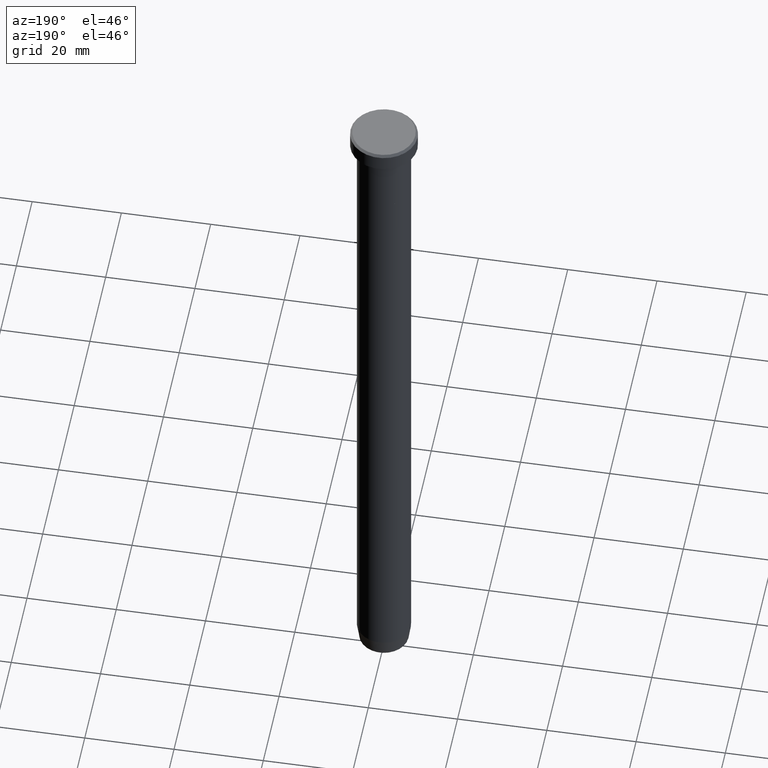
[diagram: clean part render]
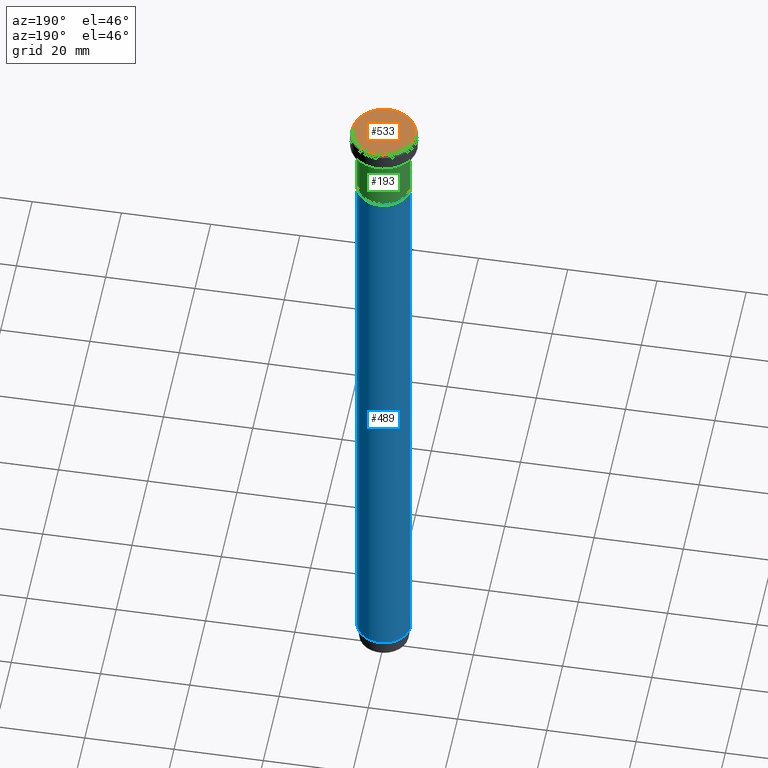
[diagram: same view with three faces highlighted in distinct colors, each labeled with its STEP entity id]
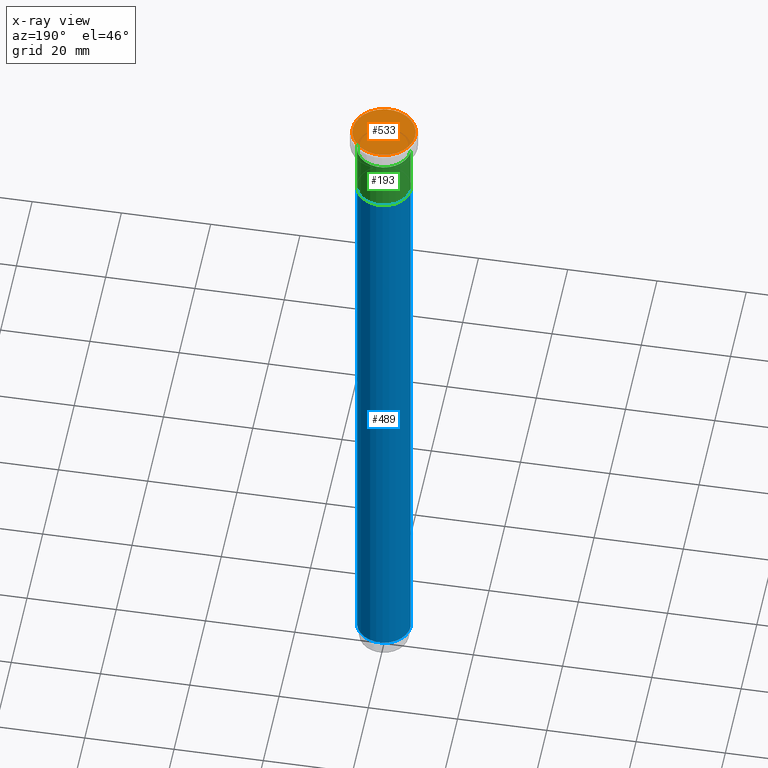
[diagram: x-ray of the same camera — body ghosted, the three highlighted faces saturated]
A machine part, auxiliary view with three faces highlighted in distinct colors.
The next image is the same camera in x-ray (body ghosted, the three faces saturated) — at least one of them is partly hidden behind the body in this view.
Their STEP definitions:

[orange] entity #533 — the highlighted planar face has unit normal (0, -0, 1).
#26 = CIRCLE ( 'NONE', #42, 7.000000000000001776 ) ;
#42 = AXIS2_PLACEMENT_3D ( 'NONE', #46, #379, #423 ) ;
#46 = CARTESIAN_POINT ( 'NONE',  ( 0.000000000000000000, 0.000000000000000000, 0.000000000000000000 ) ) ;
#95 = CARTESIAN_POINT ( 'NONE',  ( 7.000000000000001776, 8.878689293818310074E-16, 0.000000000000000000 ) ) ;
#99 = PLANE ( 'NONE',  #532 ) ;
#138 = DIRECTION ( 'NONE',  ( 1.000000000000000000, 0.000000000000000000, 0.000000000000000000 ) ) ;
#142 = CARTESIAN_POINT ( 'NONE',  ( 0.000000000000000000, 0.000000000000000000, 0.000000000000000000 ) ) ;
#149 = DIRECTION ( 'NONE',  ( 0.000000000000000000, -0.000000000000000000, 1.000000000000000000 ) ) ;
#158 = ORIENTED_EDGE ( 'NONE', *, *, #336, .T. ) ;
#185 = CARTESIAN_POINT ( 'NONE',  ( 0.000000000000000000, 0.000000000000000000, 0.000000000000000000 ) ) ;
#259 = CIRCLE ( 'NONE', #461, 7.000000000000001776 ) ;
#260 = VERTEX_POINT ( 'NONE', #352 ) ;
#265 = EDGE_LOOP ( 'NONE', ( #158, #273 ) ) ;
#273 = ORIENTED_EDGE ( 'NONE', *, *, #456, .T. ) ;
#330 = DIRECTION ( 'NONE',  ( 1.000000000000000000, 0.000000000000000000, 0.000000000000000000 ) ) ;
#336 = EDGE_CURVE ( 'NONE', #260, #498, #26, .T. ) ;
#352 = CARTESIAN_POINT ( 'NONE',  ( -7.000000000000001776, 0.000000000000000000, 0.000000000000000000 ) ) ;
#379 = DIRECTION ( 'NONE',  ( -0.000000000000000000, -0.000000000000000000, 1.000000000000000000 ) ) ;
#423 = DIRECTION ( 'NONE',  ( 1.000000000000000000, 0.000000000000000000, 0.000000000000000000 ) ) ;
#453 = DIRECTION ( 'NONE',  ( -0.000000000000000000, -0.000000000000000000, 1.000000000000000000 ) ) ;
#456 = EDGE_CURVE ( 'NONE', #498, #260, #259, .T. ) ;
#461 = AXIS2_PLACEMENT_3D ( 'NONE', #142, #453, #138 ) ;
#498 = VERTEX_POINT ( 'NONE', #95 ) ;
#501 = FACE_OUTER_BOUND ( 'NONE', #265, .T. ) ;
#532 = AXIS2_PLACEMENT_3D ( 'NONE', #185, #149, #330 ) ;
#533 = ADVANCED_FACE ( 'NONE', ( #501 ), #99, .T. ) ;

[blue] entity #489 — the highlighted cylindrical surface (edge-blend (fillet) strip) has radius 6 mm, axis along (-0, -0, 1).
#37 = CARTESIAN_POINT ( 'NONE',  ( -6.000000000000000000, 7.347880794884119736E-16, 0.000000000000000000 ) ) ;
#45 = CARTESIAN_POINT ( 'NONE',  ( 6.000000000000000000, 0.000000000000000000, 0.000000000000000000 ) ) ;
#47 = DIRECTION ( 'NONE',  ( -0.000000000000000000, -0.000000000000000000, 1.000000000000000000 ) ) ;
#62 = AXIS2_PLACEMENT_3D ( 'NONE', #374, #508, #414 ) ;
#91 = FACE_OUTER_BOUND ( 'NONE', #201, .T. ) ;
#97 = CARTESIAN_POINT ( 'NONE',  ( -6.000000000000000000, 7.347880794884119736E-16, -17.00000000000000000 ) ) ;
#105 = EDGE_CURVE ( 'NONE', #214, #393, #538, .T. ) ;
#112 = ORIENTED_EDGE ( 'NONE', *, *, #521, .F. ) ;
#121 = ORIENTED_EDGE ( 'NONE', *, *, #355, .T. ) ;
#130 = LINE ( 'NONE', #45, #180 ) ;
#161 = VERTEX_POINT ( 'NONE', #591 ) ;
#174 = CARTESIAN_POINT ( 'NONE',  ( 6.000000000000000000, 0.000000000000000000, -17.00000000000000000 ) ) ;
#180 = VECTOR ( 'NONE', #182, 1000.000000000000000 ) ;
#182 = DIRECTION ( 'NONE',  ( -0.000000000000000000, -0.000000000000000000, 1.000000000000000000 ) ) ;
#201 = EDGE_LOOP ( 'NONE', ( #121, #331, #493, #112 ) ) ;
#214 = VERTEX_POINT ( 'NONE', #174 ) ;
#225 = CARTESIAN_POINT ( 'NONE',  ( -6.000000000000000000, 7.347880794884119736E-16, -155.9999999999999716 ) ) ;
#249 = EDGE_CURVE ( 'NONE', #251, #393, #443, .T. ) ;
#251 = VERTEX_POINT ( 'NONE', #225 ) ;
#302 = CARTESIAN_POINT ( 'NONE',  ( 0.000000000000000000, 0.000000000000000000, -17.00000000000000000 ) ) ;
#331 = ORIENTED_EDGE ( 'NONE', *, *, #249, .T. ) ;
#355 = EDGE_CURVE ( 'NONE', #161, #251, #510, .T. ) ;
#358 = AXIS2_PLACEMENT_3D ( 'NONE', #376, #47, #507 ) ;
#374 = CARTESIAN_POINT ( 'NONE',  ( 0.000000000000000000, 0.000000000000000000, -155.9999999999999716 ) ) ;
#376 = CARTESIAN_POINT ( 'NONE',  ( 0.000000000000000000, 0.000000000000000000, 0.000000000000000000 ) ) ;
#380 = CYLINDRICAL_SURFACE ( 'NONE', #358, 6.000000000000000000 ) ;
#393 = VERTEX_POINT ( 'NONE', #97 ) ;
#414 = DIRECTION ( 'NONE',  ( 1.000000000000000000, 0.000000000000000000, 0.000000000000000000 ) ) ;
#424 = AXIS2_PLACEMENT_3D ( 'NONE', #302, #484, #580 ) ;
#443 = LINE ( 'NONE', #37, #459 ) ;
#452 = DIRECTION ( 'NONE',  ( -0.000000000000000000, -0.000000000000000000, 1.000000000000000000 ) ) ;
#459 = VECTOR ( 'NONE', #452, 1000.000000000000000 ) ;
#484 = DIRECTION ( 'NONE',  ( -0.000000000000000000, -0.000000000000000000, 1.000000000000000000 ) ) ;
#489 = ADVANCED_FACE ( 'NONE', ( #91 ), #380, .T. ) ;
#493 = ORIENTED_EDGE ( 'NONE', *, *, #105, .F. ) ;
#507 = DIRECTION ( 'NONE',  ( 1.000000000000000000, 0.000000000000000000, 0.000000000000000000 ) ) ;
#508 = DIRECTION ( 'NONE',  ( -0.000000000000000000, -0.000000000000000000, 1.000000000000000000 ) ) ;
#510 = CIRCLE ( 'NONE', #62, 6.000000000000000000 ) ;
#521 = EDGE_CURVE ( 'NONE', #161, #214, #130, .T. ) ;
#538 = CIRCLE ( 'NONE', #424, 6.000000000000000000 ) ;
#580 = DIRECTION ( 'NONE',  ( 1.000000000000000000, 0.000000000000000000, 0.000000000000000000 ) ) ;
#591 = CARTESIAN_POINT ( 'NONE',  ( 6.000000000000000000, 0.000000000000000000, -155.9999999999999716 ) ) ;

[green] entity #193 — the highlighted cylindrical surface (edge-blend (fillet) strip) has radius 6 mm, axis along (-0, -0, 1).
#9 = CIRCLE ( 'NONE', #44, 6.000000000000000000 ) ;
#14 = EDGE_CURVE ( 'NONE', #211, #163, #475, .T. ) ;
#30 = CARTESIAN_POINT ( 'NONE',  ( -6.000000000000000000, 7.347880794884119736E-16, -5.000000000000000000 ) ) ;
#39 = CARTESIAN_POINT ( 'NONE',  ( 6.000000000000000000, 0.000000000000000000, 0.000000000000000000 ) ) ;
#44 = AXIS2_PLACEMENT_3D ( 'NONE', #513, #412, #466 ) ;
#53 = DIRECTION ( 'NONE',  ( -0.000000000000000000, -0.000000000000000000, 1.000000000000000000 ) ) ;
#80 = ORIENTED_EDGE ( 'NONE', *, *, #253, .F. ) ;
#104 = ORIENTED_EDGE ( 'NONE', *, *, #440, .T. ) ;
#120 = CARTESIAN_POINT ( 'NONE',  ( 6.000000000000000000, 0.000000000000000000, -5.000000000000000000 ) ) ;
#124 = CARTESIAN_POINT ( 'NONE',  ( -6.000000000000000000, 7.347880794884119736E-16, -17.00000000000000000 ) ) ;
#128 = EDGE_LOOP ( 'NONE', ( #104, #296, #402, #80 ) ) ;
#163 = VERTEX_POINT ( 'NONE', #30 ) ;
#167 = DIRECTION ( 'NONE',  ( -0.000000000000000000, -0.000000000000000000, 1.000000000000000000 ) ) ;
#177 = LINE ( 'NONE', #39, #345 ) ;
#178 = CARTESIAN_POINT ( 'NONE',  ( 6.000000000000000000, 0.000000000000000000, -17.00000000000000000 ) ) ;
#193 = ADVANCED_FACE ( 'NONE', ( #542 ), #224, .T. ) ;
#211 = VERTEX_POINT ( 'NONE', #124 ) ;
#221 = CIRCLE ( 'NONE', #561, 6.000000000000000000 ) ;
#224 = CYLINDRICAL_SURFACE ( 'NONE', #241, 6.000000000000000000 ) ;
#241 = AXIS2_PLACEMENT_3D ( 'NONE', #503, #584, #406 ) ;
#253 = EDGE_CURVE ( 'NONE', #576, #276, #177, .T. ) ;
#276 = VERTEX_POINT ( 'NONE', #120 ) ;
#296 = ORIENTED_EDGE ( 'NONE', *, *, #14, .T. ) ;
#300 = DIRECTION ( 'NONE',  ( -0.000000000000000000, -0.000000000000000000, 1.000000000000000000 ) ) ;
#345 = VECTOR ( 'NONE', #167, 1000.000000000000000 ) ;
#361 = EDGE_CURVE ( 'NONE', #276, #163, #221, .T. ) ;
#402 = ORIENTED_EDGE ( 'NONE', *, *, #361, .F. ) ;
#406 = DIRECTION ( 'NONE',  ( 1.000000000000000000, 0.000000000000000000, 0.000000000000000000 ) ) ;
#412 = DIRECTION ( 'NONE',  ( -0.000000000000000000, -0.000000000000000000, 1.000000000000000000 ) ) ;
#440 = EDGE_CURVE ( 'NONE', #576, #211, #9, .T. ) ;
#466 = DIRECTION ( 'NONE',  ( 1.000000000000000000, 0.000000000000000000, 0.000000000000000000 ) ) ;
#475 = LINE ( 'NONE', #571, #527 ) ;
#503 = CARTESIAN_POINT ( 'NONE',  ( 0.000000000000000000, 0.000000000000000000, 0.000000000000000000 ) ) ;
#513 = CARTESIAN_POINT ( 'NONE',  ( 0.000000000000000000, 0.000000000000000000, -17.00000000000000000 ) ) ;
#514 = CARTESIAN_POINT ( 'NONE',  ( 0.000000000000000000, 0.000000000000000000, -5.000000000000000000 ) ) ;
#527 = VECTOR ( 'NONE', #300, 1000.000000000000000 ) ;
#542 = FACE_OUTER_BOUND ( 'NONE', #128, .T. ) ;
#559 = DIRECTION ( 'NONE',  ( 1.000000000000000000, 0.000000000000000000, 0.000000000000000000 ) ) ;
#561 = AXIS2_PLACEMENT_3D ( 'NONE', #514, #53, #559 ) ;
#571 = CARTESIAN_POINT ( 'NONE',  ( -6.000000000000000000, 7.347880794884119736E-16, 0.000000000000000000 ) ) ;
#576 = VERTEX_POINT ( 'NONE', #178 ) ;
#584 = DIRECTION ( 'NONE',  ( -0.000000000000000000, -0.000000000000000000, 1.000000000000000000 ) ) ;